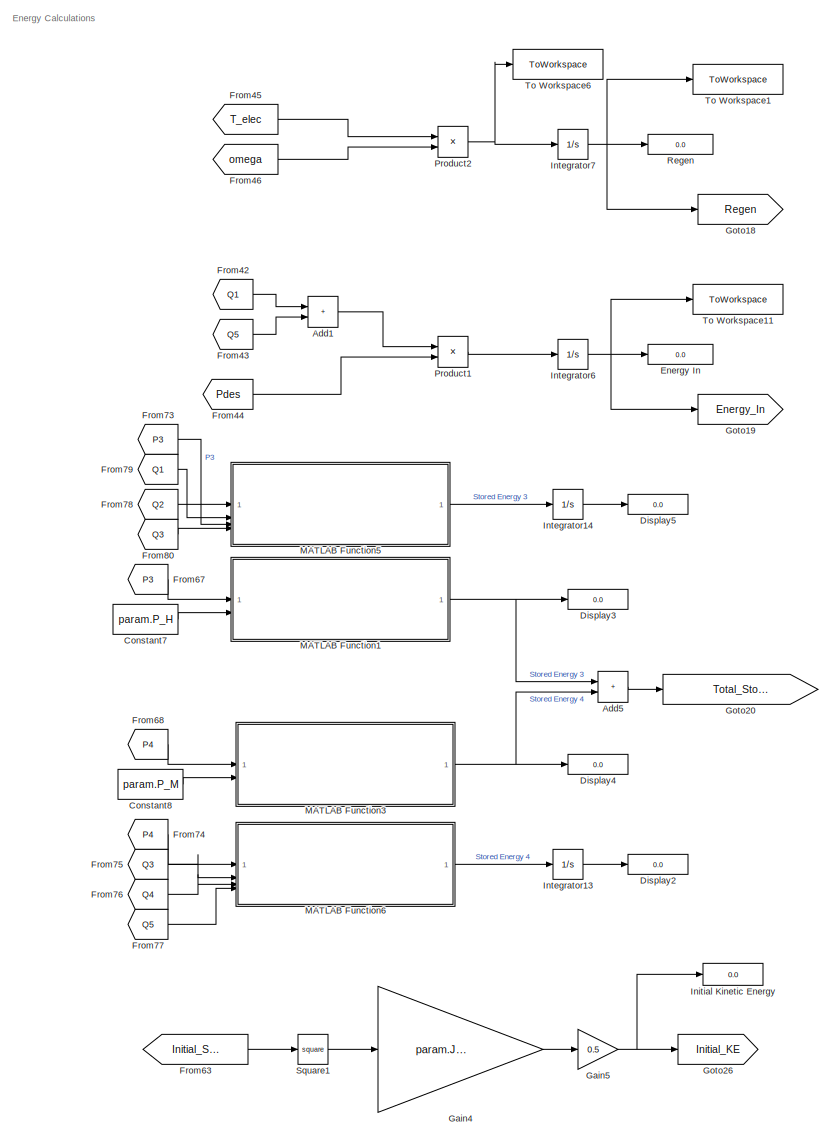
[diagram: root canvas - part 1/8, center side, full height]
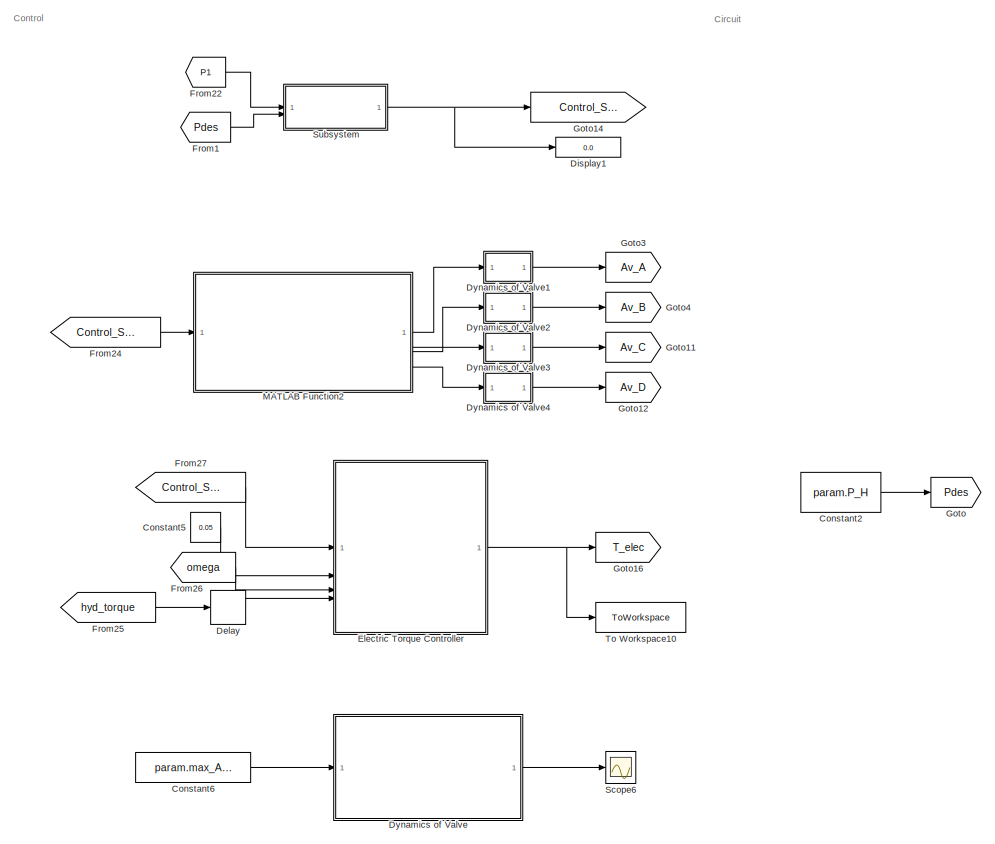
[diagram: root canvas - part 2/8, top left region]
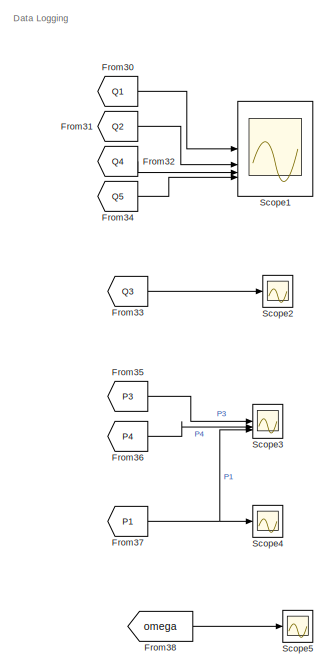
[diagram: root canvas - part 3/8, top center region]
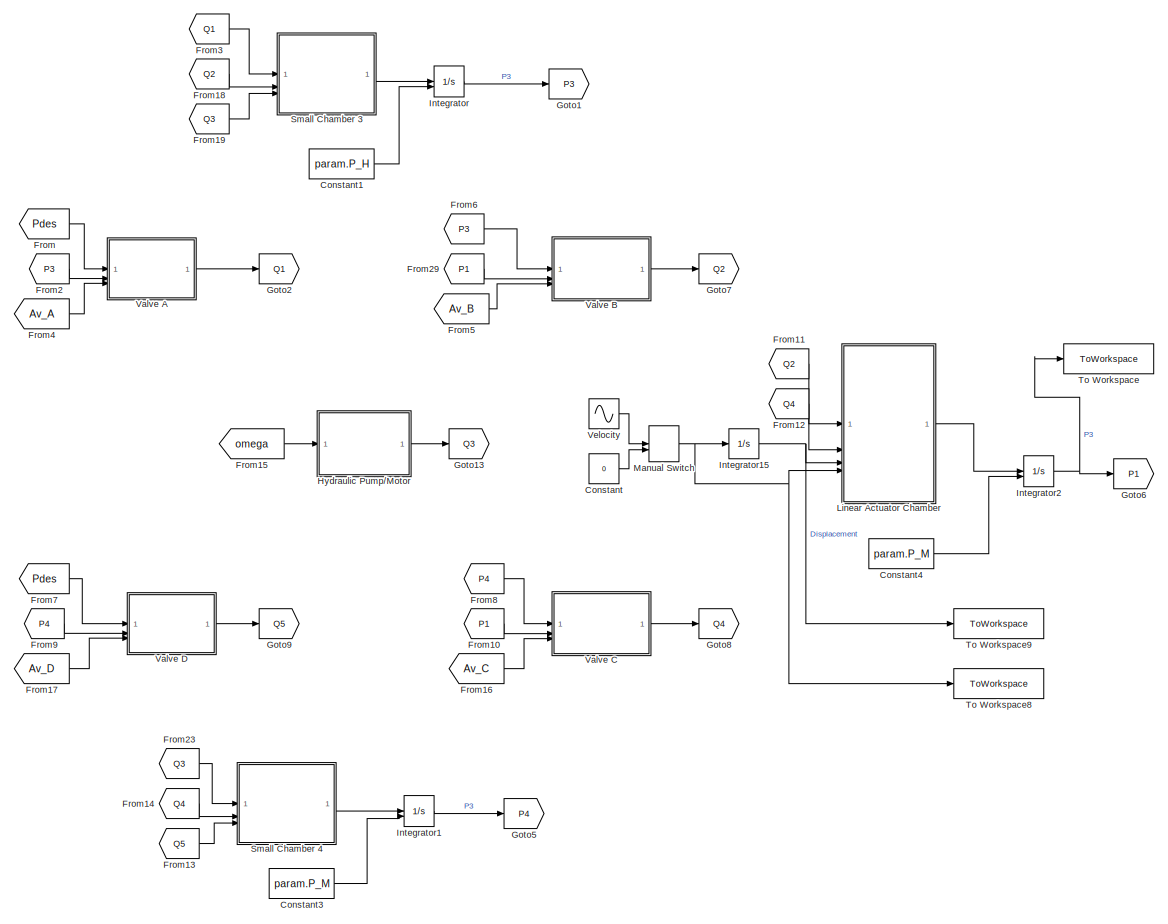
[diagram: root canvas - part 4/8, middle left region]
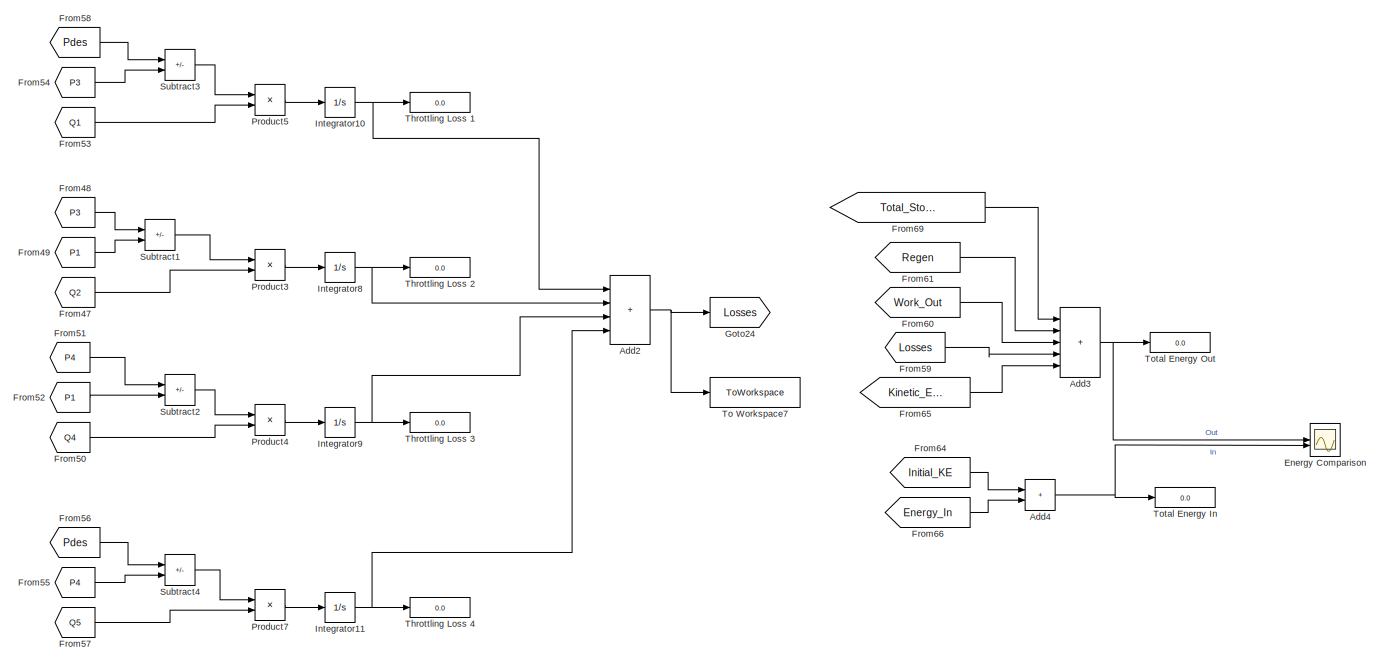
[diagram: root canvas - part 5/8, top right region]
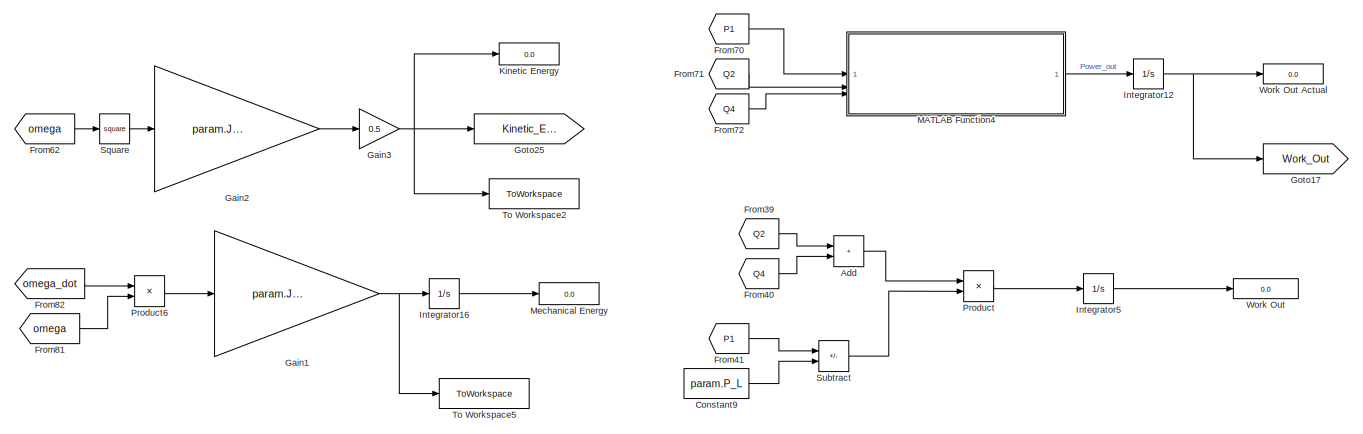
[diagram: root canvas - part 6/8, middle right region]
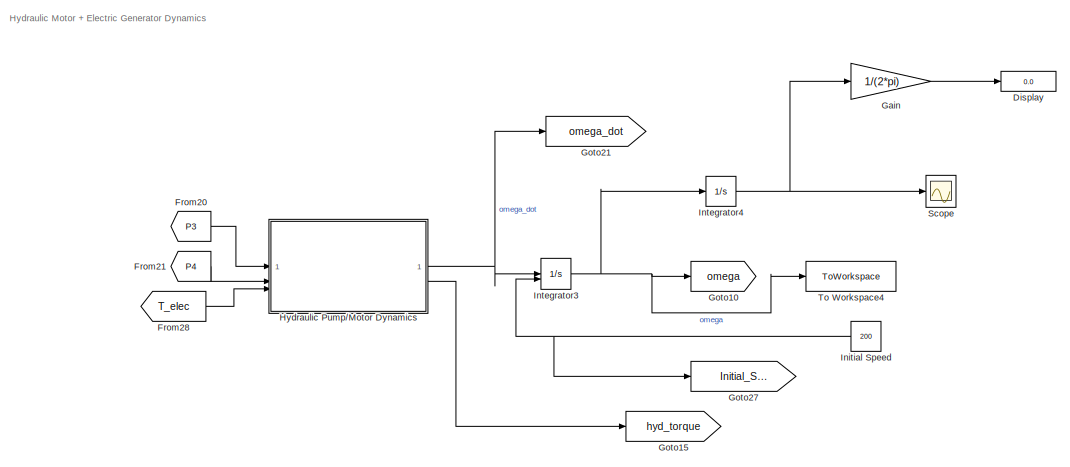
[diagram: root canvas - part 7/8, bottom left region]
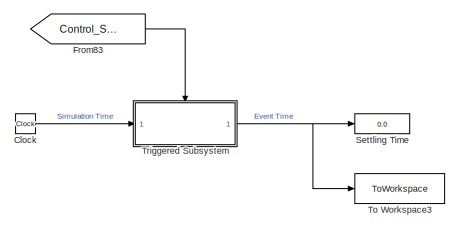
[diagram: root canvas - part 8/8, bottom center region]
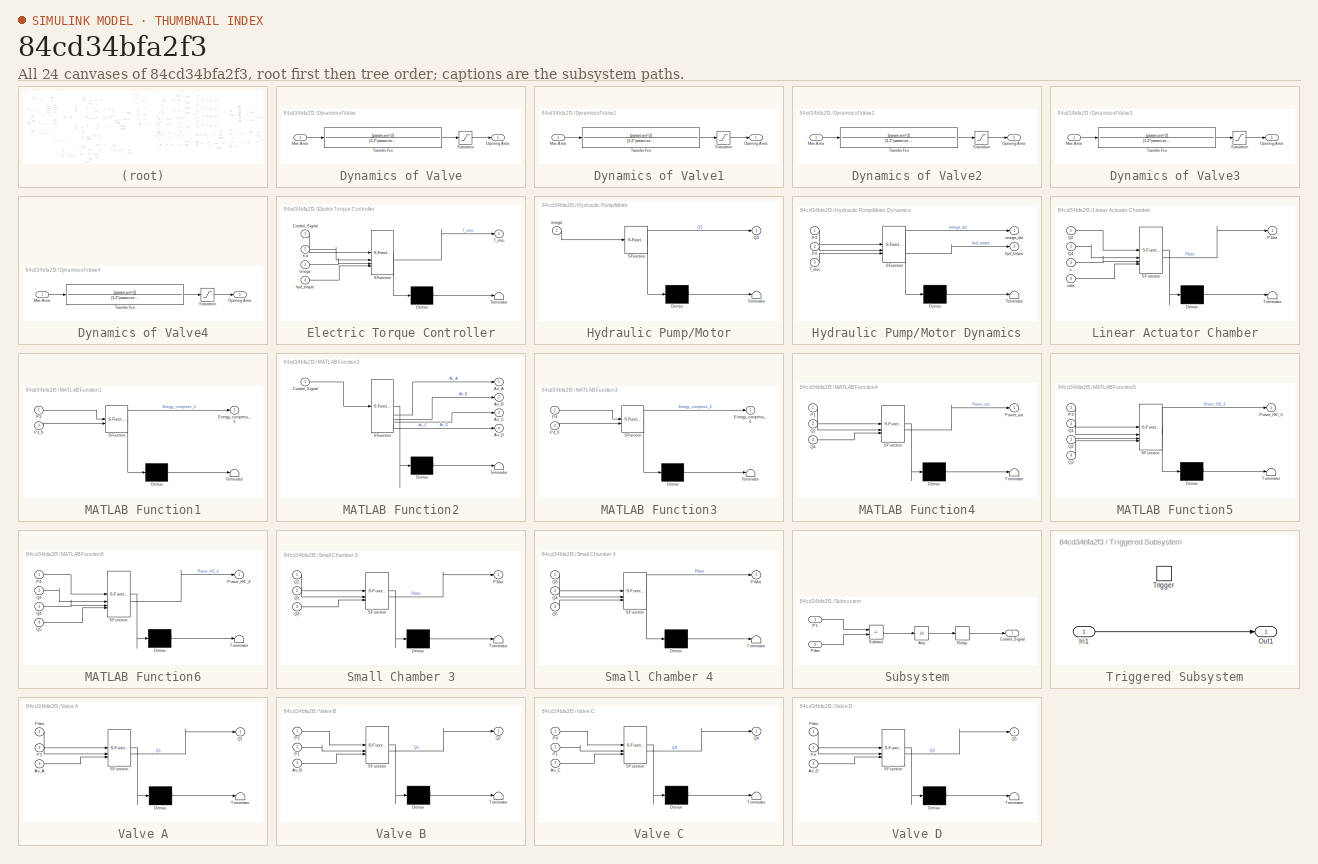
[diagram: thumbnail index - all 24 canvases of the model, root first then tree order]
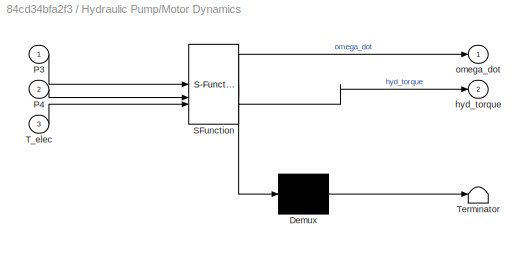
MODEL slx_84cd34bfa2f3
KIND model
CONFIG AbsTol = auto
CONFIG EnableMultiTasking = off
CONFIG FixedStep = 1e-6
CONFIG InitFcn = param = struct();\n\nparam.P_H = 20e6;\nparam.P_M = 10e6;\nparam.P_L = 101325;\n\n% Linear Actuator Chamber\nparam.V1_0 = 1e-3;\nparam.Acap = 0.0045;\n\n% Intermediary volumes\nparam.V3_0 = 200e-6;\nparam.V4_0 = 200e-6;\n\n% Fluid\nparam.beta = 1.8e9;\n\n% Valve\nparam.max_Avt = 0.5*0.25*pi*(20e-3)^2;\nparam.Cd = 0.6;\n\n% Valve Dynamics\nparam.wn = 50*2*pi;\nparam.zeta = 1;\n\n% Hydraulic Pump/Motor\nparam.J_hyd = 3000e-7...<+88ch>
CONFIG MaxStep = 1e-6
CONFIG MinStep = auto
CONFIG RelTol = 1e-8
CONFIG SampleTimeConstraint = Unconstrained
CONFIG SolverName = ode23s
CONFIG StartTime = 0.0
CONFIG StopTime = 0.2
BLOCK [Sum] Add
  IconShape = rectangular
BLOCK [Sum] Add1
  IconShape = rectangular
BLOCK [Sum] Add2
  IconShape = rectangular
  Inputs = ++++
BLOCK [Sum] Add3
  IconShape = rectangular
  Inputs = +++++
BLOCK [Sum] Add4
  IconShape = rectangular
BLOCK [Sum] Add5
  IconShape = rectangular
BLOCK [Clock] Clock
BLOCK [Constant] Constant
  Value = 0
BLOCK [Constant] Constant1
  Value = param.P_H
BLOCK [Constant] Constant2
  Value = param.P_H
BLOCK [Constant] Constant3
  Value = param.P_M
BLOCK [Constant] Constant4
  Value = param.P_M
BLOCK [Constant] Constant5
  Value = 0.05
BLOCK [Constant] Constant6
  Value = param.max_Avt
BLOCK [Constant] Constant7
  Value = param.P_H
BLOCK [Constant] Constant8
  Value = param.P_M
BLOCK [Constant] Constant9
  Value = param.P_L
BLOCK [Delay] Delay
  DelayLength = 1
  InputPortMap = u0
BLOCK [Display] Display
  Decimation = 1
BLOCK [Display] Display1
  Decimation = 1
BLOCK [Display] Display2
  Decimation = 1
BLOCK [Display] Display3
  Decimation = 1
BLOCK [Display] Display4
  Decimation = 1
BLOCK [Display] Display5
  Decimation = 1
BLOCK [SubSystem] Dynamics of Valve
BLOCK [Inport] Dynamics of Valve/Max Area
BLOCK [Outport] Dynamics of Valve/Opening Area
BLOCK [Saturate] Dynamics of Valve/Saturation
  LowerLimit = 0
  UpperLimit = param.max_Avt
BLOCK [TransferFcn] Dynamics of Valve/Transfer Fcn
  Denominator = [1,2*param.zeta*param.wn,param.wn^2]
  Numerator = [param.wn^2]
BLOCK [SubSystem] Dynamics of Valve1
BLOCK [Inport] Dynamics of Valve1/Max Area
BLOCK [Outport] Dynamics of Valve1/Opening Area
BLOCK [Saturate] Dynamics of Valve1/Saturation
  LowerLimit = 0
  UpperLimit = param.max_Avt
BLOCK [TransferFcn] Dynamics of Valve1/Transfer Fcn
  Denominator = [1,2*param.zeta*param.wn,param.wn^2]
  Numerator = [param.wn^2]
BLOCK [SubSystem] Dynamics of Valve2
BLOCK [Inport] Dynamics of Valve2/Max Area
BLOCK [Outport] Dynamics of Valve2/Opening Area
BLOCK [Saturate] Dynamics of Valve2/Saturation
  LowerLimit = 0
  UpperLimit = param.max_Avt
BLOCK [TransferFcn] Dynamics of Valve2/Transfer Fcn
  Denominator = [1,2*param.zeta*param.wn,param.wn^2]
  Numerator = [param.wn^2]
BLOCK [SubSystem] Dynamics of Valve3
BLOCK [Inport] Dynamics of Valve3/Max Area
BLOCK [Outport] Dynamics of Valve3/Opening Area
BLOCK [Saturate] Dynamics of Valve3/Saturation
  LowerLimit = 0
  UpperLimit = param.max_Avt
BLOCK [TransferFcn] Dynamics of Valve3/Transfer Fcn
  Denominator = [1,2*param.zeta*param.wn,param.wn^2]
  Numerator = [param.wn^2]
BLOCK [SubSystem] Dynamics of Valve4
BLOCK [Inport] Dynamics of Valve4/Max Area
BLOCK [Outport] Dynamics of Valve4/Opening Area
BLOCK [Saturate] Dynamics of Valve4/Saturation
  LowerLimit = 0
  UpperLimit = param.max_Avt
BLOCK [TransferFcn] Dynamics of Valve4/Transfer Fcn
  Denominator = [1,2*param.zeta*param.wn,param.wn^2]
  Numerator = [param.wn^2]
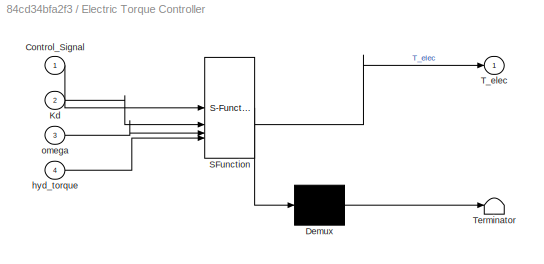
BLOCK [SubSystem] Electric Torque Controller
  ErrorFcn = Stateflow.Translate.translate
  PermitHierarchicalResolution = ExplicitOnly
  SFBlockType = MATLAB Function
  TreatAsAtomicUnit = on
BLOCK [Demux] Electric Torque Controller/ Demux 
  Outputs = 1
BLOCK [S-Function] Electric Torque Controller/ SFunction 
  EnableBusSupport = on
  FunctionName = sf_sfun
  PortCounts = [4 2]
  SFcnIsStateOwnerBlock = off
  SFunctionDeploymentMode = off
  Tag = Stateflow S-Function 11
BLOCK [Terminator] Electric Torque Controller/ Terminator 
BLOCK [Inport] Electric Torque Controller/Control_Signal
BLOCK [Inport] Electric Torque Controller/Kd
  Port = 2
BLOCK [Outport] Electric Torque Controller/T_elec
BLOCK [Inport] Electric Torque Controller/hyd_torque
  Port = 4
BLOCK [Inport] Electric Torque Controller/omega
  Port = 3
BLOCK [Scope] Energy Comparison
  Floating = off
  NumInputPorts = 2
  ScopeSpecificationString = Simulink.scopes.TimeScopeBlockCfg('CurrentConfiguration', extmgr.ConfigurationSet(extmgr.Configuration('Core','General UI',true),extmgr.Configuration('Core','Source UI',true),extmgr.Configuration('Sources','WiredSimulink',true,'DataLoggingVariableName','ScopeData7'),extmgr.Configuration('Visuals','Time Domain',true,'SerializedDisplays',{struct('MinYLimReal','-23.58923','MaxYLimReal','212.30305','Y...<+1449ch>
BLOCK [Display] Energy In
  Decimation = 1
BLOCK [From] From
  GotoTag = Pdes
BLOCK [From] From1
  GotoTag = Pdes
BLOCK [From] From10
  GotoTag = P1
BLOCK [From] From11
  GotoTag = Q2
BLOCK [From] From12
  GotoTag = Q4
BLOCK [From] From13
  GotoTag = Q5
BLOCK [From] From14
  GotoTag = Q4
BLOCK [From] From15
  GotoTag = omega
BLOCK [From] From16
  GotoTag = Av_C
BLOCK [From] From17
  GotoTag = Av_D
BLOCK [From] From18
  GotoTag = Q2
BLOCK [From] From19
  GotoTag = Q3
BLOCK [From] From2
  GotoTag = P3
BLOCK [From] From20
  GotoTag = P3
BLOCK [From] From21
  GotoTag = P4
BLOCK [From] From22
  GotoTag = P1
BLOCK [From] From23
  GotoTag = Q3
BLOCK [From] From24
  GotoTag = Control_Signal
BLOCK [From] From25
  GotoTag = hyd_torque
BLOCK [From] From26
  GotoTag = omega
BLOCK [From] From27
  GotoTag = Control_Signal
BLOCK [From] From28
  GotoTag = T_elec
BLOCK [From] From29
  GotoTag = P1
BLOCK [From] From3
  GotoTag = Q1
BLOCK [From] From30
  GotoTag = Q1
BLOCK [From] From31
  GotoTag = Q2
BLOCK [From] From32
  GotoTag = Q4
BLOCK [From] From33
  GotoTag = Q3
BLOCK [From] From34
  GotoTag = Q5
BLOCK [From] From35
  GotoTag = P3
BLOCK [From] From36
  GotoTag = P4
BLOCK [From] From37
  GotoTag = P1
BLOCK [From] From38
  GotoTag = omega
BLOCK [From] From39
  GotoTag = Q2
BLOCK [From] From4
  GotoTag = Av_A
BLOCK [From] From40
  GotoTag = Q4
BLOCK [From] From41
  GotoTag = P1
BLOCK [From] From42
  GotoTag = Q1
BLOCK [From] From43
  GotoTag = Q5
BLOCK [From] From44
  GotoTag = Pdes
BLOCK [From] From45
  GotoTag = T_elec
BLOCK [From] From46
  GotoTag = omega
BLOCK [From] From47
  GotoTag = Q2
BLOCK [From] From48
  GotoTag = P3
BLOCK [From] From49
  GotoTag = P1
BLOCK [From] From5
  GotoTag = Av_B
BLOCK [From] From50
  GotoTag = Q4
BLOCK [From] From51
  GotoTag = P4
BLOCK [From] From52
  GotoTag = P1
BLOCK [From] From53
  GotoTag = Q1
BLOCK [From] From54
  GotoTag = P3
BLOCK [From] From55
  GotoTag = P4
BLOCK [From] From56
  GotoTag = Pdes
BLOCK [From] From57
  GotoTag = Q5
BLOCK [From] From58
  GotoTag = Pdes
BLOCK [From] From59
  GotoTag = Losses
BLOCK [From] From6
  GotoTag = P3
BLOCK [From] From60
  GotoTag = Work_Out
BLOCK [From] From61
  GotoTag = Regen
BLOCK [From] From62
  GotoTag = omega
BLOCK [From] From63
  GotoTag = Initial_Speed
BLOCK [From] From64
  GotoTag = Initial_KE
BLOCK [From] From65
  GotoTag = Kinetic_Energy
BLOCK [From] From66
  GotoTag = Energy_In
BLOCK [From] From67
  GotoTag = P3
BLOCK [From] From68
  GotoTag = P4
BLOCK [From] From69
  GotoTag = Total_Stored_Energy
BLOCK [From] From7
  GotoTag = Pdes
BLOCK [From] From70
  GotoTag = P1
BLOCK [From] From71
  GotoTag = Q2
BLOCK [From] From72
  GotoTag = Q4
BLOCK [From] From73
  GotoTag = P3
BLOCK [From] From74
  GotoTag = P4
BLOCK [From] From75
  GotoTag = Q3
BLOCK [From] From76
  GotoTag = Q4
BLOCK [From] From77
  GotoTag = Q5
BLOCK [From] From78
  GotoTag = Q2
BLOCK [From] From79
  GotoTag = Q1
BLOCK [From] From8
  GotoTag = P4
BLOCK [From] From80
  GotoTag = Q3
BLOCK [From] From81
  GotoTag = omega
BLOCK [From] From82
  GotoTag = omega_dot
BLOCK [From] From83
  GotoTag = Control_Signal
BLOCK [From] From9
  GotoTag = P4
BLOCK [Gain] Gain
  Gain = 1/(2*pi)
BLOCK [Gain] Gain1
  Gain = param.J_elec+param.J_hyd
BLOCK [Gain] Gain2
  Gain = param.J_elec+param.J_hyd
BLOCK [Gain] Gain3
  Gain = 0.5
BLOCK [Gain] Gain4
  Gain = param.J_elec+param.J_hyd
BLOCK [Gain] Gain5
  Gain = 0.5
BLOCK [Goto] Goto
  GotoTag = Pdes
BLOCK [Goto] Goto1
  GotoTag = P3
BLOCK [Goto] Goto10
  GotoTag = omega
BLOCK [Goto] Goto11
  GotoTag = Av_C
BLOCK [Goto] Goto12
  GotoTag = Av_D
BLOCK [Goto] Goto13
  GotoTag = Q3
BLOCK [Goto] Goto14
  GotoTag = Control_Signal
BLOCK [Goto] Goto15
  GotoTag = hyd_torque
BLOCK [Goto] Goto16
  GotoTag = T_elec
BLOCK [Goto] Goto17
  GotoTag = Work_Out
BLOCK [Goto] Goto18
  GotoTag = Regen
BLOCK [Goto] Goto19
  GotoTag = Energy_In
BLOCK [Goto] Goto2
  GotoTag = Q1
BLOCK [Goto] Goto20
  GotoTag = Total_Stored_Energy
BLOCK [Goto] Goto21
  GotoTag = omega_dot
BLOCK [Goto] Goto24
  GotoTag = Losses
BLOCK [Goto] Goto25
  GotoTag = Kinetic_Energy
BLOCK [Goto] Goto26
  GotoTag = Initial_KE
BLOCK [Goto] Goto27
  GotoTag = Initial_Speed
BLOCK [Goto] Goto3
  GotoTag = Av_A
BLOCK [Goto] Goto4
  GotoTag = Av_B
BLOCK [Goto] Goto5
  GotoTag = P4
BLOCK [Goto] Goto6
  GotoTag = P1
BLOCK [Goto] Goto7
  GotoTag = Q2
BLOCK [Goto] Goto8
  GotoTag = Q4
BLOCK [Goto] Goto9
  GotoTag = Q5
BLOCK [SubSystem] Hydraulic Pump//Motor
  ErrorFcn = Stateflow.Translate.translate
  PermitHierarchicalResolution = ExplicitOnly
  SFBlockType = MATLAB Function
  TreatAsAtomicUnit = on
BLOCK [SubSystem] Hydraulic Pump//Motor Dynamics
  ErrorFcn = Stateflow.Translate.translate
  PermitHierarchicalResolution = ExplicitOnly
  SFBlockType = MATLAB Function
  TreatAsAtomicUnit = on
BLOCK [Demux] Hydraulic Pump//Motor Dynamics/ Demux 
  Outputs = 1
BLOCK [S-Function] Hydraulic Pump//Motor Dynamics/ SFunction 
  EnableBusSupport = on
  FunctionName = sf_sfun
  Parameters = param
  PortCounts = [3 3]
  SFcnIsStateOwnerBlock = off
  SFunctionDeploymentMode = off
  Tag = Stateflow S-Function 10
BLOCK [Terminator] Hydraulic Pump//Motor Dynamics/ Terminator 
BLOCK [Inport] Hydraulic Pump//Motor Dynamics/P3
BLOCK [Inport] Hydraulic Pump//Motor Dynamics/P4
  Port = 2
BLOCK [Inport] Hydraulic Pump//Motor Dynamics/T_elec
  Port = 3
BLOCK [Outport] Hydraulic Pump//Motor Dynamics/hyd_torque
  Port = 2
BLOCK [Outport] Hydraulic Pump//Motor Dynamics/omega_dot
BLOCK [Demux] Hydraulic Pump//Motor/ Demux 
  Outputs = 1
BLOCK [S-Function] Hydraulic Pump//Motor/ SFunction 
  EnableBusSupport = on
  FunctionName = sf_sfun
  Parameters = param
  PortCounts = [1 2]
  SFcnIsStateOwnerBlock = off
  SFunctionDeploymentMode = off
  Tag = Stateflow S-Function 9
BLOCK [Terminator] Hydraulic Pump//Motor/ Terminator 
BLOCK [Outport] Hydraulic Pump//Motor/Q3
BLOCK [Inport] Hydraulic Pump//Motor/omega
BLOCK [Display] Initial Kinetic Energy
  Decimation = 1
BLOCK [Constant] Initial Speed
  NameLocation = top
  Value = 200
BLOCK [Integrator] Integrator
  InitialCondition = param.P_M
  InitialConditionSource = external
BLOCK [Integrator] Integrator1
  InitialCondition = param.P_M
  InitialConditionSource = external
BLOCK [Integrator] Integrator10
BLOCK [Integrator] Integrator11
BLOCK [Integrator] Integrator12
BLOCK [Integrator] Integrator13
BLOCK [Integrator] Integrator14
BLOCK [Integrator] Integrator15
BLOCK [Integrator] Integrator16
BLOCK [Integrator] Integrator2
  InitialCondition = param.P_M
  InitialConditionSource = external
BLOCK [Integrator] Integrator3
  InitialConditionSource = external
BLOCK [Integrator] Integrator4
BLOCK [Integrator] Integrator5
BLOCK [Integrator] Integrator6
BLOCK [Integrator] Integrator7
BLOCK [Integrator] Integrator8
BLOCK [Integrator] Integrator9
BLOCK [Display] Kinetic Energy
  Decimation = 1
BLOCK [SubSystem] Linear Actuator Chamber
  ErrorFcn = Stateflow.Translate.translate
  PermitHierarchicalResolution = ExplicitOnly
  SFBlockType = MATLAB Function
  TreatAsAtomicUnit = on
BLOCK [Demux] Linear Actuator Chamber/ Demux 
  Outputs = 1
BLOCK [S-Function] Linear Actuator Chamber/ SFunction 
  EnableBusSupport = on
  FunctionName = sf_sfun
  Parameters = param
  PortCounts = [4 2]
  SFcnIsStateOwnerBlock = off
  SFunctionDeploymentMode = off
  Tag = Stateflow S-Function 8
BLOCK [Terminator] Linear Actuator Chamber/ Terminator 
BLOCK [Outport] Linear Actuator Chamber/P1dot
BLOCK [Inport] Linear Actuator Chamber/Q2
BLOCK [Inport] Linear Actuator Chamber/Q4
  Port = 2
BLOCK [Inport] Linear Actuator Chamber/x
  Port = 3
BLOCK [Inport] Linear Actuator Chamber/xdot
  Port = 4
BLOCK [SubSystem] MATLAB Function1
  ErrorFcn = Stateflow.Translate.translate
  LibrarySourceBlock = simulink/User-Defined\nFunctions/MATLAB Function
  PermitHierarchicalResolution = ExplicitOnly
  SFBlockType = MATLAB Function
  TreatAsAtomicUnit = on
BLOCK [Demux] MATLAB Function1/ Demux 
  Outputs = 1
BLOCK [S-Function] MATLAB Function1/ SFunction 
  EnableBusSupport = on
  FunctionName = sf_sfun
  Parameters = param
  PortCounts = [2 2]
  SFcnIsStateOwnerBlock = off
  SFunctionDeploymentMode = off
  Tag = Stateflow S-Function 13
BLOCK [Terminator] MATLAB Function1/ Terminator 
BLOCK [Outport] MATLAB Function1/Energy_compress_3
BLOCK [Inport] MATLAB Function1/P3
BLOCK [Inport] MATLAB Function1/P3_0
  Port = 2
BLOCK [SubSystem] MATLAB Function2
  ErrorFcn = Stateflow.Translate.translate
  PermitHierarchicalResolution = ExplicitOnly
  SFBlockType = MATLAB Function
  TreatAsAtomicUnit = on
BLOCK [Demux] MATLAB Function2/ Demux 
  Outputs = 1
BLOCK [S-Function] MATLAB Function2/ SFunction 
  EnableBusSupport = on
  FunctionName = sf_sfun
  Parameters = param
  PortCounts = [1 5]
  SFcnIsStateOwnerBlock = off
  SFunctionDeploymentMode = off
  Tag = Stateflow S-Function 3
BLOCK [Terminator] MATLAB Function2/ Terminator 
BLOCK [Outport] MATLAB Function2/Av_A
BLOCK [Outport] MATLAB Function2/Av_B
  Port = 2
BLOCK [Outport] MATLAB Function2/Av_C
  Port = 3
BLOCK [Outport] MATLAB Function2/Av_D
  Port = 4
BLOCK [Inport] MATLAB Function2/Control_Signal
BLOCK [SubSystem] MATLAB Function3
  ErrorFcn = Stateflow.Translate.translate
  LibrarySourceBlock = simulink/User-Defined\nFunctions/MATLAB Function
  PermitHierarchicalResolution = ExplicitOnly
  SFBlockType = MATLAB Function
  TreatAsAtomicUnit = on
BLOCK [Demux] MATLAB Function3/ Demux 
  Outputs = 1
BLOCK [S-Function] MATLAB Function3/ SFunction 
  EnableBusSupport = on
  FunctionName = sf_sfun
  Parameters = param
  PortCounts = [2 2]
  SFcnIsStateOwnerBlock = off
  SFunctionDeploymentMode = off
  Tag = Stateflow S-Function 12
BLOCK [Terminator] MATLAB Function3/ Terminator 
BLOCK [Outport] MATLAB Function3/Energy_compress_4
BLOCK [Inport] MATLAB Function3/P4
BLOCK [Inport] MATLAB Function3/P4_0
  Port = 2
BLOCK [SubSystem] MATLAB Function4
  ErrorFcn = Stateflow.Translate.translate
  LibrarySourceBlock = simulink/User-Defined\nFunctions/MATLAB Function
  PermitHierarchicalResolution = ExplicitOnly
  SFBlockType = MATLAB Function
  TreatAsAtomicUnit = on
BLOCK [Demux] MATLAB Function4/ Demux 
  Outputs = 1
BLOCK [S-Function] MATLAB Function4/ SFunction 
  EnableBusSupport = on
  FunctionName = sf_sfun
  Parameters = param
  PortCounts = [3 2]
  SFcnIsStateOwnerBlock = off
  SFunctionDeploymentMode = off
  Tag = Stateflow S-Function 14
BLOCK [Terminator] MATLAB Function4/ Terminator 
BLOCK [Inport] MATLAB Function4/P1
BLOCK [Outport] MATLAB Function4/Power_out
BLOCK [Inport] MATLAB Function4/Q2
  Port = 2
BLOCK [Inport] MATLAB Function4/Q4
  Port = 3
BLOCK [SubSystem] MATLAB Function5
  ErrorFcn = Stateflow.Translate.translate
  LibrarySourceBlock = simulink/User-Defined\nFunctions/MATLAB Function
  PermitHierarchicalResolution = ExplicitOnly
  SFBlockType = MATLAB Function
  TreatAsAtomicUnit = on
BLOCK [Demux] MATLAB Function5/ Demux 
  Outputs = 1
BLOCK [S-Function] MATLAB Function5/ SFunction 
  EnableBusSupport = on
  FunctionName = sf_sfun
  Parameters = param
  PortCounts = [4 2]
  SFcnIsStateOwnerBlock = off
  SFunctionDeploymentMode = off
  Tag = Stateflow S-Function 15
BLOCK [Terminator] MATLAB Function5/ Terminator 
BLOCK [Inport] MATLAB Function5/P3
BLOCK [Outport] MATLAB Function5/Power_HE_3
BLOCK [Inport] MATLAB Function5/Q1
  Port = 2
BLOCK [Inport] MATLAB Function5/Q2
  Port = 3
BLOCK [Inport] MATLAB Function5/Q3
  Port = 4
BLOCK [SubSystem] MATLAB Function6
  ErrorFcn = Stateflow.Translate.translate
  LibrarySourceBlock = simulink/User-Defined\nFunctions/MATLAB Function
  PermitHierarchicalResolution = ExplicitOnly
  SFBlockType = MATLAB Function
  TreatAsAtomicUnit = on
BLOCK [Demux] MATLAB Function6/ Demux 
  Outputs = 1
BLOCK [S-Function] MATLAB Function6/ SFunction 
  EnableBusSupport = on
  FunctionName = sf_sfun
  Parameters = param
  PortCounts = [4 2]
  SFcnIsStateOwnerBlock = off
  SFunctionDeploymentMode = off
  Tag = Stateflow S-Function 16
BLOCK [Terminator] MATLAB Function6/ Terminator 
BLOCK [Inport] MATLAB Function6/P4
BLOCK [Outport] MATLAB Function6/Power_HE_4
BLOCK [Inport] MATLAB Function6/Q3
  Port = 2
BLOCK [Inport] MATLAB Function6/Q4
  Port = 3
BLOCK [Inport] MATLAB Function6/Q5
  Port = 4
BLOCK [ManualSwitch] Manual Switch
BLOCK [Display] Mechanical Energy
  Decimation = 1
BLOCK [Product] Product
BLOCK [Product] Product1
BLOCK [Product] Product2
BLOCK [Product] Product3
BLOCK [Product] Product4
BLOCK [Product] Product5
BLOCK [Product] Product6
BLOCK [Product] Product7
BLOCK [Display] Regen
  Decimation = 1
BLOCK [Scope] Scope
  Floating = off
  NumInputPorts = 1
  ScopeSpecificationString = Simulink.scopes.TimeScopeBlockCfg('CurrentConfiguration', extmgr.ConfigurationSet(extmgr.Configuration('Core','General UI',true),extmgr.Configuration('Core','Source UI',true),extmgr.Configuration('Sources','WiredSimulink',true),extmgr.Configuration('Visuals','Time Domain',true),extmgr.Configuration('Tools','Plot Navigation',true),extmgr.Configuration('Tools','Measurements',true)),'Version','2023b'...<+1ch>
BLOCK [Scope] Scope1
  Floating = off
  NumInputPorts = 4
  ScopeSpecificationString = Simulink.scopes.TimeScopeBlockCfg('CurrentConfiguration', extmgr.ConfigurationSet(extmgr.Configuration('Core','General UI',true),extmgr.Configuration('Core','Source UI',true),extmgr.Configuration('Sources','WiredSimulink',true,'DataLoggingVariableName','ScopeData1'),extmgr.Configuration('Visuals','Time Domain',true,'SerializedDisplays',{struct('MinYLimReal','-0.00006','MaxYLimReal','0.00009','YLab...<+3627ch>
BLOCK [Scope] Scope2
  Floating = off
  NumInputPorts = 1
  ScopeSpecificationString = Simulink.scopes.TimeScopeBlockCfg('CurrentConfiguration', extmgr.ConfigurationSet(extmgr.Configuration('Core','General UI',true),extmgr.Configuration('Core','Source UI',true),extmgr.Configuration('Sources','WiredSimulink',true,'DataLoggingVariableName','ScopeData2'),extmgr.Configuration('Visuals','Time Domain',true),extmgr.Configuration('Tools','Plot Navigation',true),extmgr.Configuration('Tools',...<+40ch>
BLOCK [Scope] Scope3
  Floating = off
  NumInputPorts = 3
  ScopeSpecificationString = Simulink.scopes.TimeScopeBlockCfg('CurrentConfiguration', extmgr.ConfigurationSet(extmgr.Configuration('Core','General UI',true),extmgr.Configuration('Core','Source UI',true),extmgr.Configuration('Sources','WiredSimulink',true,'DataLoggingVariableName','ScopeData3'),extmgr.Configuration('Visuals','Time Domain',true,'SerializedDisplays',{struct('MinYLimReal','8646180.82201','MaxYLimReal','21285968....<+1611ch>
BLOCK [Scope] Scope4
  Floating = off
  NumInputPorts = 1
  ScopeSpecificationString = Simulink.scopes.TimeScopeBlockCfg('CurrentConfiguration', extmgr.ConfigurationSet(extmgr.Configuration('Core','General UI',true),extmgr.Configuration('Core','Source UI',true),extmgr.Configuration('Sources','WiredSimulink',true,'DataLoggingVariableName','ScopeData4'),extmgr.Configuration('Visuals','Time Domain',true,'SerializedDisplays',{struct('MinYLimReal','8749999.29753','MaxYLimReal','21250006....<+1460ch>
BLOCK [Scope] Scope5
  Floating = off
  NumInputPorts = 1
  ScopeSpecificationString = Simulink.scopes.TimeScopeBlockCfg('CurrentConfiguration', extmgr.ConfigurationSet(extmgr.Configuration('Core','General UI',true),extmgr.Configuration('Core','Source UI',true),extmgr.Configuration('Sources','WiredSimulink',true,'DataLoggingVariableName','ScopeData5'),extmgr.Configuration('Visuals','Time Domain',true,'SerializedDisplays',{struct('MinYLimReal','-37.5001','MaxYLimReal','337.50088','YL...<+1422ch>
BLOCK [Scope] Scope6
  Floating = off
  NumInputPorts = 1
  ScopeSpecificationString = Simulink.scopes.TimeScopeBlockCfg('CurrentConfiguration', extmgr.ConfigurationSet(extmgr.Configuration('Core','General UI',true),extmgr.Configuration('Core','Source UI',true),extmgr.Configuration('Sources','WiredSimulink',true,'DataLoggingVariableName','ScopeData6'),extmgr.Configuration('Visuals','Time Domain',true,'SerializedDisplays',{struct('MinYLimReal','-0.00002','MaxYLimReal','0.00018','YLab...<+1448ch>
BLOCK [Display] Settling Time
  Decimation = 1
BLOCK [SubSystem] Small Chamber 3
  ErrorFcn = Stateflow.Translate.translate
  PermitHierarchicalResolution = ExplicitOnly
  SFBlockType = MATLAB Function
  TreatAsAtomicUnit = on
BLOCK [Demux] Small Chamber 3/ Demux 
  Outputs = 1
BLOCK [S-Function] Small Chamber 3/ SFunction 
  EnableBusSupport = on
  FunctionName = sf_sfun
  Parameters = param
  PortCounts = [3 2]
  SFcnIsStateOwnerBlock = off
  SFunctionDeploymentMode = off
  Tag = Stateflow S-Function 1
BLOCK [Terminator] Small Chamber 3/ Terminator 
BLOCK [Outport] Small Chamber 3/P3dot
BLOCK [Inport] Small Chamber 3/Q1
BLOCK [Inport] Small Chamber 3/Q2
  Port = 2
BLOCK [Inport] Small Chamber 3/Q3
  Port = 3
BLOCK [SubSystem] Small Chamber 4
  ErrorFcn = Stateflow.Translate.translate
  PermitHierarchicalResolution = ExplicitOnly
  SFBlockType = MATLAB Function
  TreatAsAtomicUnit = on
BLOCK [Demux] Small Chamber 4/ Demux 
  Outputs = 1
BLOCK [S-Function] Small Chamber 4/ SFunction 
  EnableBusSupport = on
  FunctionName = sf_sfun
  Parameters = param
  PortCounts = [3 2]
  SFcnIsStateOwnerBlock = off
  SFunctionDeploymentMode = off
  Tag = Stateflow S-Function 7
BLOCK [Terminator] Small Chamber 4/ Terminator 
BLOCK [Outport] Small Chamber 4/P4dot
BLOCK [Inport] Small Chamber 4/Q3
BLOCK [Inport] Small Chamber 4/Q4
  Port = 2
BLOCK [Inport] Small Chamber 4/Q5
  Port = 3
BLOCK [Math] Square
  Operator = square
BLOCK [Math] Square1
  Operator = square
BLOCK [SubSystem] Subsystem
BLOCK [Abs] Subsystem/Abs
  SaturateOnIntegerOverflow = off
BLOCK [Outport] Subsystem/Control_Signal
BLOCK [Inport] Subsystem/P1
BLOCK [Inport] Subsystem/Pdes
  Port = 2
BLOCK [Relay] Subsystem/Relay
  OffOutputValue = 1
  OffSwitchValue = 1e4
  OnOutputValue = 0
  OnSwitchValue = 1e6
BLOCK [Sum] Subsystem/Subtract
  IconShape = rectangular
  Inputs = +-
BLOCK [Sum] Subtract
  IconShape = rectangular
  Inputs = +-
BLOCK [Sum] Subtract1
  IconShape = rectangular
  Inputs = +-
BLOCK [Sum] Subtract2
  IconShape = rectangular
  Inputs = +-
BLOCK [Sum] Subtract3
  IconShape = rectangular
  Inputs = +-
BLOCK [Sum] Subtract4
  IconShape = rectangular
  Inputs = +-
BLOCK [Display] Throttling Loss 1
  Decimation = 1
BLOCK [Display] Throttling Loss 2
  Decimation = 1
BLOCK [Display] Throttling Loss 3
  Decimation = 1
BLOCK [Display] Throttling Loss 4
  Decimation = 1
BLOCK [ToWorkspace] To Workspace
  FixptAsFi = on
  MaxDataPoints = inf
  SampleTime = -1
  SaveFormat = Timeseries
  VariableName = P1
BLOCK [ToWorkspace] To Workspace1
  FixptAsFi = on
  MaxDataPoints = inf
  SampleTime = -1
  SaveFormat = Timeseries
  VariableName = Regen
BLOCK [ToWorkspace] To Workspace10
  FixptAsFi = on
  MaxDataPoints = inf
  SampleTime = -1
  SaveFormat = Timeseries
  VariableName = T_elec
BLOCK [ToWorkspace] To Workspace11
  FixptAsFi = on
  MaxDataPoints = inf
  SampleTime = -1
  SaveFormat = Timeseries
  VariableName = Energy_In
BLOCK [ToWorkspace] To Workspace2
  FixptAsFi = on
  MaxDataPoints = inf
  SampleTime = -1
  SaveFormat = Timeseries
  VariableName = KE
BLOCK [ToWorkspace] To Workspace3
  FixptAsFi = on
  MaxDataPoints = inf
  SampleTime = -1
  SaveFormat = Timeseries
  VariableName = Time_settle
BLOCK [ToWorkspace] To Workspace4
  FixptAsFi = on
  MaxDataPoints = inf
  SampleTime = -1
  SaveFormat = Timeseries
  VariableName = omega
BLOCK [ToWorkspace] To Workspace5
  FixptAsFi = on
  MaxDataPoints = inf
  SampleTime = -1
  SaveFormat = Timeseries
  VariableName = mech_power
BLOCK [ToWorkspace] To Workspace6
  FixptAsFi = on
  MaxDataPoints = inf
  SampleTime = -1
  SaveFormat = Timeseries
  VariableName = Regen_power
BLOCK [ToWorkspace] To Workspace7
  FixptAsFi = on
  MaxDataPoints = inf
  SampleTime = -1
  SaveFormat = Timeseries
  VariableName = Losses
BLOCK [ToWorkspace] To Workspace8
  FixptAsFi = on
  MaxDataPoints = inf
  SampleTime = -1
  SaveFormat = Timeseries
  VariableName = xdot
BLOCK [ToWorkspace] To Workspace9
  FixptAsFi = on
  MaxDataPoints = inf
  SampleTime = -1
  SaveFormat = Timeseries
  VariableName = x
BLOCK [Display] Total Energy In
  Decimation = 1
BLOCK [Display] Total Energy Out
  Decimation = 1
BLOCK [SubSystem] Triggered Subsystem
  TreatAsAtomicUnit = on
BLOCK [Inport] Triggered Subsystem/In1
BLOCK [Outport] Triggered Subsystem/Out1
BLOCK [TriggerPort] Triggered Subsystem/Trigger
  StatesWhenEnabling = held
  VariantControl = (inherit)
BLOCK [SubSystem] Valve A
  ErrorFcn = Stateflow.Translate.translate
  PermitHierarchicalResolution = ExplicitOnly
  SFBlockType = MATLAB Function
  TreatAsAtomicUnit = on
BLOCK [Demux] Valve A/ Demux 
  Outputs = 1
BLOCK [S-Function] Valve A/ SFunction 
  EnableBusSupport = on
  FunctionName = sf_sfun
  Parameters = param
  PortCounts = [3 2]
  SFcnIsStateOwnerBlock = off
  SFunctionDeploymentMode = off
  Tag = Stateflow S-Function 2
BLOCK [Terminator] Valve A/ Terminator 
BLOCK [Inport] Valve A/Av_A
  Port = 3
BLOCK [Inport] Valve A/P3
  Port = 2
BLOCK [Inport] Valve A/Pdes
BLOCK [Outport] Valve A/Q1
BLOCK [SubSystem] Valve B
  ErrorFcn = Stateflow.Translate.translate
  PermitHierarchicalResolution = ExplicitOnly
  SFBlockType = MATLAB Function
  TreatAsAtomicUnit = on
BLOCK [Demux] Valve B/ Demux 
  Outputs = 1
BLOCK [S-Function] Valve B/ SFunction 
  EnableBusSupport = on
  FunctionName = sf_sfun
  Parameters = param
  PortCounts = [3 2]
  SFcnIsStateOwnerBlock = off
  SFunctionDeploymentMode = off
  Tag = Stateflow S-Function 4
BLOCK [Terminator] Valve B/ Terminator 
BLOCK [Inport] Valve B/Av_B
  Port = 3
BLOCK [Inport] Valve B/P1
  Port = 2
BLOCK [Inport] Valve B/P3
BLOCK [Outport] Valve B/Q2
BLOCK [SubSystem] Valve C
  ErrorFcn = Stateflow.Translate.translate
  PermitHierarchicalResolution = ExplicitOnly
  SFBlockType = MATLAB Function
  TreatAsAtomicUnit = on
BLOCK [Demux] Valve C/ Demux 
  Outputs = 1
BLOCK [S-Function] Valve C/ SFunction 
  EnableBusSupport = on
  FunctionName = sf_sfun
  Parameters = param
  PortCounts = [3 2]
  SFcnIsStateOwnerBlock = off
  SFunctionDeploymentMode = off
  Tag = Stateflow S-Function 6
BLOCK [Terminator] Valve C/ Terminator 
BLOCK [Inport] Valve C/Av_C
  Port = 3
BLOCK [Inport] Valve C/P1
  Port = 2
BLOCK [Inport] Valve C/P4
BLOCK [Outport] Valve C/Q4
BLOCK [SubSystem] Valve D
  ErrorFcn = Stateflow.Translate.translate
  PermitHierarchicalResolution = ExplicitOnly
  SFBlockType = MATLAB Function
  TreatAsAtomicUnit = on
BLOCK [Demux] Valve D/ Demux 
  Outputs = 1
BLOCK [S-Function] Valve D/ SFunction 
  EnableBusSupport = on
  FunctionName = sf_sfun
  Parameters = param
  PortCounts = [3 2]
  SFcnIsStateOwnerBlock = off
  SFunctionDeploymentMode = off
  Tag = Stateflow S-Function 5
BLOCK [Terminator] Valve D/ Terminator 
BLOCK [Inport] Valve D/Av_D
  Port = 3
BLOCK [Inport] Valve D/P4
  Port = 2
BLOCK [Inport] Valve D/Pdes
BLOCK [Outport] Valve D/Q5
BLOCK [Sin] Velocity
  Amplitude = 1e-2
  Frequency = (2*pi)/0.2
  Phase = pi/2
  SampleTime = 0
BLOCK [Display] Work Out
  Decimation = 1
BLOCK [Display] Work Out Actual
  Decimation = 1
ANNOTATION (root): Circuit
ANNOTATION (root): Control
ANNOTATION (root): Data Logging
ANNOTATION (root): Energy Calculations
ANNOTATION (root): Hydraulic Motor + Electric Generator Dynamics
LINE Add1:1 -> Product1:1
NET Add2:1 -> Goto24:1, To Workspace7:1
NET Add3:1 -> Energy Comparison:1, Total Energy Out:1
NET Add4:1 -> Energy Comparison:2, Total Energy In:1
LINE Add5:1 -> Goto20:1
LINE Add:1 -> Product:1
LINE Clock:1 -> Triggered Subsystem:1
LINE Constant1:1 -> Integrator:2
LINE Constant2:1 -> Goto:1
LINE Constant3:1 -> Integrator1:2
LINE Constant4:1 -> Integrator2:2
LINE Constant5:1 -> Electric Torque Controller:2
LINE Constant6:1 -> Dynamics of Valve:1
LINE Constant7:1 -> MATLAB Function1:2
LINE Constant8:1 -> MATLAB Function3:2
LINE Constant9:1 -> Subtract:2
LINE Constant:1 -> Manual Switch:2
LINE Delay:1 -> Electric Torque Controller:4
LINE Dynamics of Valve/Max Area:1 -> Dynamics of Valve/Transfer Fcn:1
LINE Dynamics of Valve/Saturation:1 -> Dynamics of Valve/Opening Area:1
LINE Dynamics of Valve/Transfer Fcn:1 -> Dynamics of Valve/Saturation:1
LINE Dynamics of Valve1/Max Area:1 -> Dynamics of Valve1/Transfer Fcn:1
LINE Dynamics of Valve1/Saturation:1 -> Dynamics of Valve1/Opening Area:1
LINE Dynamics of Valve1/Transfer Fcn:1 -> Dynamics of Valve1/Saturation:1
LINE Dynamics of Valve1:1 -> Goto3:1
LINE Dynamics of Valve2/Max Area:1 -> Dynamics of Valve2/Transfer Fcn:1
LINE Dynamics of Valve2/Saturation:1 -> Dynamics of Valve2/Opening Area:1
LINE Dynamics of Valve2/Transfer Fcn:1 -> Dynamics of Valve2/Saturation:1
LINE Dynamics of Valve2:1 -> Goto4:1
LINE Dynamics of Valve3/Max Area:1 -> Dynamics of Valve3/Transfer Fcn:1
LINE Dynamics of Valve3/Saturation:1 -> Dynamics of Valve3/Opening Area:1
LINE Dynamics of Valve3/Transfer Fcn:1 -> Dynamics of Valve3/Saturation:1
LINE Dynamics of Valve3:1 -> Goto11:1
LINE Dynamics of Valve4/Max Area:1 -> Dynamics of Valve4/Transfer Fcn:1
LINE Dynamics of Valve4/Saturation:1 -> Dynamics of Valve4/Opening Area:1
LINE Dynamics of Valve4/Transfer Fcn:1 -> Dynamics of Valve4/Saturation:1
LINE Dynamics of Valve4:1 -> Goto12:1
LINE Dynamics of Valve:1 -> Scope6:1
NET Electric Torque Controller:1 -> Goto16:1, To Workspace10:1
LINE From10:1 -> Valve C:2
LINE From11:1 -> Linear Actuator Chamber:1
LINE From12:1 -> Linear Actuator Chamber:2
LINE From13:1 -> Small Chamber 4:3
LINE From14:1 -> Small Chamber 4:2
LINE From15:1 -> Hydraulic Pump//Motor:1
LINE From16:1 -> Valve C:3
LINE From17:1 -> Valve D:3
LINE From18:1 -> Small Chamber 3:2
LINE From19:1 -> Small Chamber 3:3
LINE From1:1 -> Subsystem:2
LINE From20:1 -> Hydraulic Pump//Motor Dynamics:1
LINE From21:1 -> Hydraulic Pump//Motor Dynamics:2
LINE From22:1 -> Subsystem:1
LINE From23:1 -> Small Chamber 4:1
LINE From24:1 -> MATLAB Function2:1
LINE From25:1 -> Delay:1
LINE From26:1 -> Electric Torque Controller:3
LINE From27:1 -> Electric Torque Controller:1
LINE From28:1 -> Hydraulic Pump//Motor Dynamics:3
LINE From29:1 -> Valve B:2
LINE From2:1 -> Valve A:2
LINE From30:1 -> Scope1:1
LINE From31:1 -> Scope1:2
LINE From32:1 -> Scope1:3
LINE From33:1 -> Scope2:1
LINE From34:1 -> Scope1:4
LINE From35:1 -> Scope3:1
LINE From36:1 -> Scope3:2
NET From37:1 -> Scope3:3, Scope4:1
LINE From38:1 -> Scope5:1
LINE From39:1 -> Add:1
LINE From3:1 -> Small Chamber 3:1
LINE From40:1 -> Add:2
LINE From41:1 -> Subtract:1
LINE From42:1 -> Add1:1
LINE From43:1 -> Add1:2
LINE From44:1 -> Product1:2
LINE From45:1 -> Product2:1
LINE From46:1 -> Product2:2
LINE From47:1 -> Product3:2
LINE From48:1 -> Subtract1:1
LINE From49:1 -> Subtract1:2
LINE From4:1 -> Valve A:3
LINE From50:1 -> Product4:2
LINE From51:1 -> Subtract2:1
LINE From52:1 -> Subtract2:2
LINE From53:1 -> Product5:2
LINE From54:1 -> Subtract3:2
LINE From55:1 -> Subtract4:2
LINE From56:1 -> Subtract4:1
LINE From57:1 -> Product7:2
LINE From58:1 -> Subtract3:1
LINE From59:1 -> Add3:4
LINE From5:1 -> Valve B:3
LINE From60:1 -> Add3:3
LINE From61:1 -> Add3:2
LINE From62:1 -> Square:1
LINE From63:1 -> Square1:1
LINE From64:1 -> Add4:1
LINE From65:1 -> Add3:5
LINE From66:1 -> Add4:2
LINE From67:1 -> MATLAB Function1:1
LINE From68:1 -> MATLAB Function3:1
LINE From69:1 -> Add3:1
LINE From6:1 -> Valve B:1
LINE From70:1 -> MATLAB Function4:1
LINE From71:1 -> MATLAB Function4:2
LINE From72:1 -> MATLAB Function4:3
LINE From73:1 -> MATLAB Function5:1
LINE From74:1 -> MATLAB Function6:1
LINE From75:1 -> MATLAB Function6:2
LINE From76:1 -> MATLAB Function6:3
LINE From77:1 -> MATLAB Function6:4
LINE From78:1 -> MATLAB Function5:3
LINE From79:1 -> MATLAB Function5:2
LINE From7:1 -> Valve D:1
LINE From80:1 -> MATLAB Function5:4
LINE From81:1 -> Product6:2
LINE From82:1 -> Product6:1
LINE From83:1 -> Triggered Subsystem:trigger
LINE From8:1 -> Valve C:1
LINE From9:1 -> Valve D:2
LINE From:1 -> Valve A:1
NET Gain1:1 -> Integrator16:1, To Workspace5:1
LINE Gain2:1 -> Gain3:1
NET Gain3:1 -> Goto25:1, Kinetic Energy:1, To Workspace2:1
LINE Gain4:1 -> Gain5:1
NET Gain5:1 -> Goto26:1, Initial Kinetic Energy:1
LINE Gain:1 -> Display:1
NET Hydraulic Pump//Motor Dynamics:1 -> Goto21:1, Integrator3:1
LINE Hydraulic Pump//Motor Dynamics:2 -> Goto15:1
LINE Hydraulic Pump//Motor:1 -> Goto13:1
NET Initial Speed:1 -> Goto27:1, Integrator3:2
NET Integrator10:1 -> Add2:1, Throttling Loss 1:1
NET Integrator11:1 -> Add2:4, Throttling Loss 4:1
NET Integrator12:1 -> Goto17:1, Work Out Actual:1
LINE Integrator13:1 -> Display2:1
LINE Integrator14:1 -> Display5:1
NET Integrator15:1 -> Linear Actuator Chamber:3, To Workspace9:1
LINE Integrator16:1 -> Mechanical Energy:1
LINE Integrator1:1 -> Goto5:1
NET Integrator2:1 -> Goto6:1, To Workspace:1
NET Integrator3:1 -> Goto10:1, Integrator4:1, To Workspace4:1
NET Integrator4:1 -> Gain:1, Scope:1
LINE Integrator5:1 -> Work Out:1
NET Integrator6:1 -> Energy In:1, Goto19:1, To Workspace11:1
NET Integrator7:1 -> Goto18:1, Regen:1, To Workspace1:1
NET Integrator8:1 -> Add2:2, Throttling Loss 2:1
NET Integrator9:1 -> Add2:3, Throttling Loss 3:1
LINE Integrator:1 -> Goto1:1
LINE Linear Actuator Chamber:1 -> Integrator2:1
NET MATLAB Function1:1 -> Add5:1, Display3:1
LINE MATLAB Function2:1 -> Dynamics of Valve1:1
LINE MATLAB Function2:2 -> Dynamics of Valve2:1
LINE MATLAB Function2:3 -> Dynamics of Valve3:1
LINE MATLAB Function2:4 -> Dynamics of Valve4:1
NET MATLAB Function3:1 -> Add5:2, Display4:1
LINE MATLAB Function4:1 -> Integrator12:1
LINE MATLAB Function5:1 -> Integrator14:1
LINE MATLAB Function6:1 -> Integrator13:1
NET Manual Switch:1 -> Integrator15:1, Linear Actuator Chamber:4, To Workspace8:1
LINE Product1:1 -> Integrator6:1
NET Product2:1 -> Integrator7:1, To Workspace6:1
LINE Product3:1 -> Integrator8:1
LINE Product4:1 -> Integrator9:1
LINE Product5:1 -> Integrator10:1
LINE Product6:1 -> Gain1:1
LINE Product7:1 -> Integrator11:1
LINE Product:1 -> Integrator5:1
LINE Small Chamber 3:1 -> Integrator:1
LINE Small Chamber 4:1 -> Integrator1:1
LINE Square1:1 -> Gain4:1
LINE Square:1 -> Gain2:1
LINE Subsystem/Abs:1 -> Subsystem/Relay:1
LINE Subsystem/P1:1 -> Subsystem/Subtract:1
LINE Subsystem/Pdes:1 -> Subsystem/Subtract:2
LINE Subsystem/Relay:1 -> Subsystem/Control_Signal:1
LINE Subsystem/Subtract:1 -> Subsystem/Abs:1
NET Subsystem:1 -> Display1:1, Goto14:1
LINE Subtract1:1 -> Product3:1
LINE Subtract2:1 -> Product4:1
LINE Subtract3:1 -> Product5:1
LINE Subtract4:1 -> Product7:1
LINE Subtract:1 -> Product:2
LINE Triggered Subsystem/In1:1 -> Triggered Subsystem/Out1:1
NET Triggered Subsystem:1 -> Settling Time:1, To Workspace3:1
LINE Valve A:1 -> Goto2:1
LINE Valve B:1 -> Goto7:1
LINE Valve C:1 -> Goto8:1
LINE Valve D:1 -> Goto9:1
LINE Velocity:1 -> Manual Switch:1
note: NET lines group one-source signal fan-out (src -> all destinations, sorted); 1:1 wires keep LINE
CHART Hydraulic Pump//Motor Dynamics states=1 transitions=1
  STATE_LABEL 'eML_blk_kernel()'
  STATE_LABEL 'SCRIPT:\nfunction [omega_dot, hyd_torque] = fcn(P3,P4,T_elec,param)\n\nhyd_torque = (param.D/(2*pi))*(P3-P4);\nomega_dot = (1/(param.J_elec+param.J_hyd))*(hyd_torque-T_elec);\n'
CHART Electric Torque Controller states=1 transitions=1
  STATE_LABEL 'eML_blk_kernel()'
  STATE_LABEL 'SCRIPT:\nfunction T_elec  = fcn(Control_Signal, Kd, omega, hyd_torque)\n\nif Control_Signal == 1 \n\n    if omega < 200\n        T_elec = hyd_torque;\n    else\n        T_elec = 5;\n    end\n\nelse\n\n    if omega >= 300\n        T_elec = hyd_torque;\n    else\n        T_elec = -5;\n    end\n\nend'
CHART MATLAB Function3 states=1 transitions=1
  STATE_LABEL 'eML_blk_kernel()'
  STATE_LABEL 'SCRIPT:\nfunction Energy_compress_4  = fcn(P4, P4_0, param)\n\n%% Normal\nPg = P4 - param.P_L;\nP0 = P4_0 - param.P_L;\n\nWv = param.beta*(exp(Pg/param.beta)-(1+Pg/param.beta));\nW0 = param.beta*(exp(P0/param.beta)-(1+P0/param.beta));\n\nEnergy_compress_4 = param.V4_0*(Wv-W0);'
CHART MATLAB Function1 states=1 transitions=1
  STATE_LABEL 'eML_blk_kernel()'
  STATE_LABEL 'SCRIPT:\nfunction Energy_compress_3  = fcn(P3, P3_0, param)\n\n%% Normal\nPg = P3 - param.P_L;\nP0 = P3_0 - param.P_L;\n\nWv = param.beta*(exp(Pg/param.beta)-(1+Pg/param.beta));\nW0 = param.beta*(exp(P0/param.beta)-(1+P0/param.beta));\n\nEnergy_compress_3 = param.V3_0*(Wv-W0);'
CHART MATLAB Function4 states=1 transitions=1
  STATE_LABEL 'eML_blk_kernel()'
  STATE_LABEL 'SCRIPT:\nfunction Power_out  = fcn(P1, param, Q2, Q4)\n\n%% Normal\nPg = P1-param.P_L;\nWv = param.beta*(exp(Pg/param.beta)-(1+Pg/param.beta));\n\nPower_out = (Q2+Q4)*(Wv+Pg);'
CHART MATLAB Function5 states=1 transitions=1
  STATE_LABEL 'eML_blk_kernel()'
  STATE_LABEL 'SCRIPT:\nfunction Power_HE_3  = fcn(P3, param, Q1, Q2, Q3)\n\n%% Hydraulic Effort\nPg = P3 - param.P_L;\n\nphi_v = param.beta*(exp(Pg/param.beta)-1);\n\nPower_HE_3 = (Q1-Q2-Q3)*(phi_v);'
CHART Small Chamber 3 states=1 transitions=1
  STATE_LABEL 'eML_blk_kernel()'
  STATE_LABEL 'SCRIPT:\nfunction P3dot = fcn(Q1, Q2, Q3, param)\n\nP3dot = (param.beta/(param.V3_0))*(Q1-Q2-Q3);\n'
CHART MATLAB Function6 states=1 transitions=1
  STATE_LABEL 'eML_blk_kernel()'
  STATE_LABEL 'SCRIPT:\nfunction Power_HE_4  = fcn(P4, param, Q3, Q4, Q5)\n\n%% Hydraulic Effort\nPg = P4 - param.P_L;\n\nphi_v = param.beta*(exp(Pg/param.beta)-1);\n\nPower_HE_4 = (Q3+Q5-Q4)*(phi_v);'
CHART Valve A states=1 transitions=1
  STATE_LABEL 'eML_blk_kernel()'
  STATE_LABEL 'SCRIPT:\nfunction Q1 = fcn(Pdes, P3, Av_A, param)\n\ndelP = Pdes - P3;\nQ1 = param.Cd*Av_A*sqrt(abs(delP))*sign(delP);\n'
CHART MATLAB Function2 states=1 transitions=1
  STATE_LABEL 'eML_blk_kernel()'
  STATE_LABEL 'SCRIPT:\nfunction [Av_A, Av_B, Av_C, Av_D] = fcn(Control_Signal, param)\n\nif Control_Signal==1\n    \n    % Phase 2\n    Av_A = param.max_Avt;\n    Av_B = param.max_Avt;\n    Av_C = 0;\n    Av_D = param.max_Avt;\n\nelse\n\n    % Phase 1\n    Av_A = param.max_Avt;\n    Av_B = 0;\n    Av_C = param.max_Avt;\n    Av_D = 0;\n\nend\n'
CHART Valve B states=1 transitions=1
  STATE_LABEL 'eML_blk_kernel()'
  STATE_LABEL 'SCRIPT:\nfunction Q2 = fcn(P3, P1, Av_B, param)\n\ndelP = P3 - P1;\nQ2 = param.Cd*Av_B*sqrt(abs(delP))*sign(delP);\n'
CHART Valve D states=1 transitions=1
  STATE_LABEL 'eML_blk_kernel()'
  STATE_LABEL 'SCRIPT:\nfunction Q5 = fcn(Pdes, P4, Av_D, param)\n\ndelP = Pdes - P4;\nQ5 = param.Cd*Av_D*sqrt(abs(delP))*sign(delP);\n'
CHART Valve C states=1 transitions=1
  STATE_LABEL 'eML_blk_kernel()'
  STATE_LABEL 'SCRIPT:\nfunction Q4 = fcn(P4, P1, Av_C, param)\n\ndelP = P4 - P1;\nQ4 = param.Cd*Av_C*sqrt(abs(delP))*sign(delP);\n'
CHART Small Chamber 4 states=1 transitions=1
  STATE_LABEL 'eML_blk_kernel()'
  STATE_LABEL 'SCRIPT:\nfunction P4dot = fcn(Q3, Q4, Q5, param)\n\nP4dot = (param.beta/(param.V4_0))*(Q5+Q3-Q4);\n'
CHART Linear Actuator Chamber states=1 transitions=1
  STATE_LABEL 'eML_blk_kernel()'
  STATE_LABEL 'SCRIPT:\nfunction P1dot = fcn(Q2,Q4,x, xdot, param)\n\nP1dot = (param.beta/(param.V1_0+param.Acap*x))*(Q2+Q4-param.Acap*xdot);\n\n'
CHART Hydraulic Pump//Motor states=1 transitions=1
  STATE_LABEL 'eML_blk_kernel()'
  STATE_LABEL 'SCRIPT:\nfunction Q3 = fcn(omega, param)\n\nQ3 = (param.D/(2*pi))*omega;\n'
CHART  states=0 transitions=0
CHART  states=0 transitions=0
CHART  states=0 transitions=0
CHART  states=0 transitions=0
CHART  states=0 transitions=0
CHART  states=0 transitions=0
CHART  states=0 transitions=0
CHART  states=0 transitions=0
CHART  states=0 transitions=0
CHART  states=0 transitions=0
CHART  states=0 transitions=0
CHART  states=0 transitions=0
CHART  states=0 transitions=0
CHART  states=0 transitions=0
CHART  states=0 transitions=0
CHART  states=0 transitions=0
